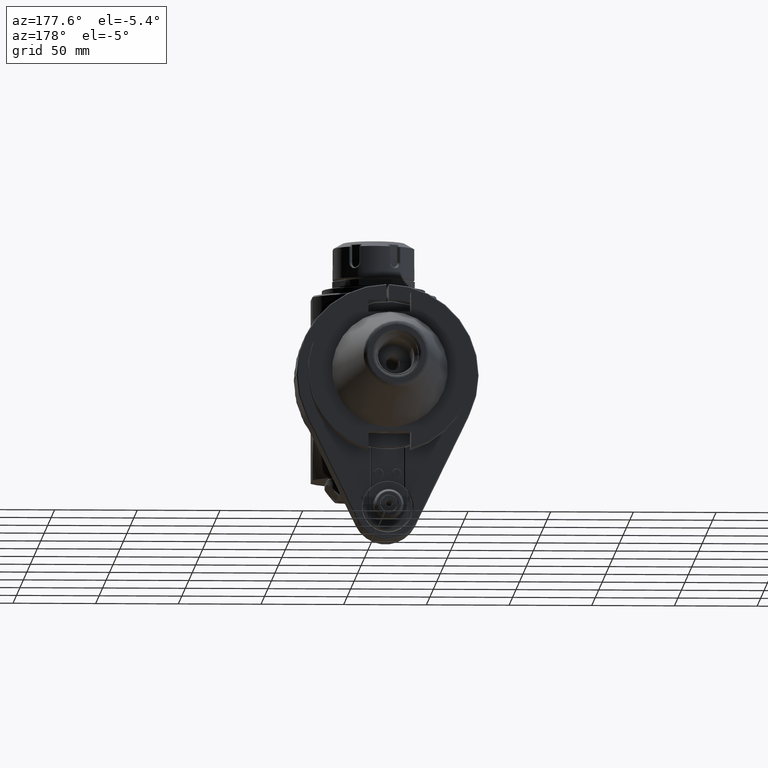
[diagram: clean part render]
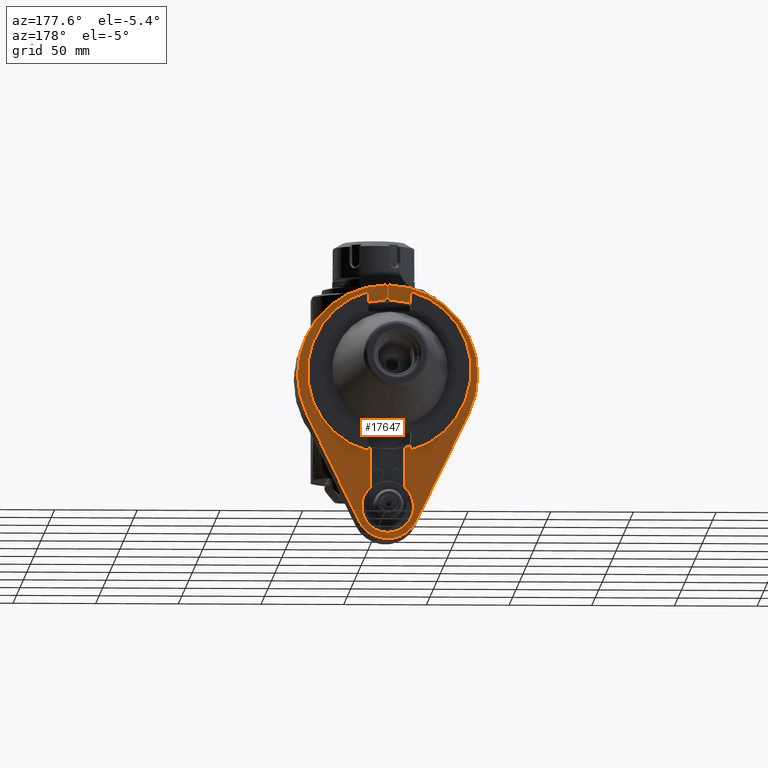
[diagram: same view with one face highlighted and labeled with its STEP entity id]
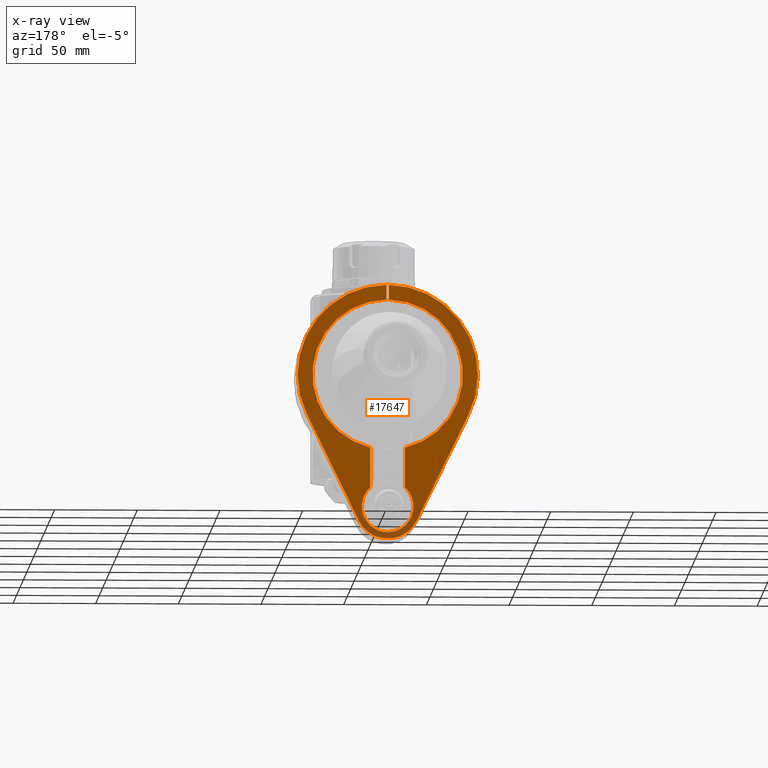
[diagram: x-ray of the same camera — body ghosted, the highlighted face saturated]
A machine part, auxiliary view. The second image highlights one B-rep face of the part: STEP entity #17647.
The next image is the same camera in x-ray: the body ghosted, the highlighted face saturated — about 0% of this face is hidden behind the body in this view.
In plain terms, the highlighted planar face has unit normal (0, 1, 0).
Its self-contained STEP definition (entity closure, byte-faithful):
#1017=CIRCLE('',#18896,45.4999446657);
#1030=CIRCLE('',#18921,54.4997279678);
#1031=CIRCLE('',#18922,19.4996670726964);
#1032=CIRCLE('',#18923,54.49972702429);
#1033=CIRCLE('',#18924,45.49996613716);
#1034=CIRCLE('',#18925,15.64997047922);
#1927=FACE_OUTER_BOUND('',#2975,.T.);
#2975=EDGE_LOOP('',(#12091,#12092,#12093,#12094,#12095,#12096,#12097,#12098,
#12099,#12100,#12101,#12102));
#4279=LINE('',#26628,#5773);
#4288=LINE('',#26683,#5782);
#4293=LINE('',#26710,#5787);
#4296=LINE('',#26717,#5790);
#4297=LINE('',#26723,#5791);
#4298=LINE('',#26726,#5792);
#5773=VECTOR('',#21159,10.);
#5782=VECTOR('',#21206,10.);
#5787=VECTOR('',#21227,10.);
#5790=VECTOR('',#21234,10.);
#5791=VECTOR('',#21241,10.);
#5792=VECTOR('',#21244,10.);
#7410=VERTEX_POINT('',#26607);
#7416=VERTEX_POINT('',#26624);
#7419=VERTEX_POINT('',#26634);
#7433=VERTEX_POINT('',#26678);
#7434=VERTEX_POINT('',#26682);
#7441=VERTEX_POINT('',#26708);
#7442=VERTEX_POINT('',#26709);
#7443=VERTEX_POINT('',#26714);
#7444=VERTEX_POINT('',#26716);
#7445=VERTEX_POINT('',#26720);
#7446=VERTEX_POINT('',#26722);
#7447=VERTEX_POINT('',#26724);
#9229=EDGE_CURVE('',#7410,#7416,#4279,.T.);
#9232=EDGE_CURVE('',#7410,#7419,#1017,.T.);
#9253=EDGE_CURVE('',#7433,#7434,#4288,.T.);
#9264=EDGE_CURVE('',#7441,#7442,#4293,.T.);
#9267=EDGE_CURVE('',#7443,#7416,#1030,.T.);
#9268=EDGE_CURVE('',#7444,#7443,#4296,.T.);
#9269=EDGE_CURVE('',#7442,#7444,#1031,.T.);
#9270=EDGE_CURVE('',#7434,#7441,#1032,.T.);
#9271=EDGE_CURVE('',#7445,#7433,#1033,.T.);
#9272=EDGE_CURVE('',#7446,#7445,#4297,.T.);
#9273=EDGE_CURVE('',#7447,#7446,#1034,.T.);
#9274=EDGE_CURVE('',#7419,#7447,#4298,.T.);
#12091=ORIENTED_EDGE('',*,*,#9232,.F.);
#12092=ORIENTED_EDGE('',*,*,#9229,.T.);
#12093=ORIENTED_EDGE('',*,*,#9267,.F.);
#12094=ORIENTED_EDGE('',*,*,#9268,.F.);
#12095=ORIENTED_EDGE('',*,*,#9269,.F.);
#12096=ORIENTED_EDGE('',*,*,#9264,.F.);
#12097=ORIENTED_EDGE('',*,*,#9270,.F.);
#12098=ORIENTED_EDGE('',*,*,#9253,.F.);
#12099=ORIENTED_EDGE('',*,*,#9271,.F.);
#12100=ORIENTED_EDGE('',*,*,#9272,.F.);
#12101=ORIENTED_EDGE('',*,*,#9273,.F.);
#12102=ORIENTED_EDGE('',*,*,#9274,.F.);
#17084=PLANE('',#18920);
#17647=ADVANCED_FACE('',(#1927),#17084,.T.);
#18896=AXIS2_PLACEMENT_3D('',#26635,#21166,#21167);
#18920=AXIS2_PLACEMENT_3D('',#26713,#21230,#21231);
#18921=AXIS2_PLACEMENT_3D('',#26715,#21232,#21233);
#18922=AXIS2_PLACEMENT_3D('',#26718,#21235,#21236);
#18923=AXIS2_PLACEMENT_3D('',#26719,#21237,#21238);
#18924=AXIS2_PLACEMENT_3D('',#26721,#21239,#21240);
#18925=AXIS2_PLACEMENT_3D('',#26725,#21242,#21243);
#21159=DIRECTION('',(0.,0.,1.));
#21166=DIRECTION('center_axis',(0.,1.,0.));
#21167=DIRECTION('ref_axis',(0.0164835280173405,0.,0.999864137422731));
#21206=DIRECTION('',(0.,0.,1.));
#21227=DIRECTION('',(0.43749999999998,0.,-0.899218410621145));
#21230=DIRECTION('center_axis',(0.,1.,0.));
#21231=DIRECTION('ref_axis',(1.,0.,0.));
#21232=DIRECTION('center_axis',(0.,-1.,0.));
#21233=DIRECTION('ref_axis',(0.899218410123311,0.,-0.437500001023205));
#21234=DIRECTION('',(0.43749999999998,0.,0.899218410621145));
#21235=DIRECTION('center_axis',(0.,-1.,0.));
#21236=DIRECTION('ref_axis',(0.,0.,1.));
#21237=DIRECTION('center_axis',(0.,-1.,0.));
#21238=DIRECTION('ref_axis',(-0.0137615308378099,0.,0.99990530565099));
#21239=DIRECTION('center_axis',(0.,1.,0.));
#21240=DIRECTION('ref_axis',(-0.230769352444596,0.,-0.973008481963185));
#21241=DIRECTION('',(0.,0.,1.));
#21242=DIRECTION('center_axis',(0.,1.,0.));
#21243=DIRECTION('ref_axis',(-0.670930538431927,0.,-0.74152020377023));
#21244=DIRECTION('',(0.,0.,-1.));
#26607=CARTESIAN_POINT('',(0.750000000027361,32.999999999515,45.4937629183949));
#26624=CARTESIAN_POINT('',(0.749999999976473,32.9999999994991,54.4945671484432));
#26628=CARTESIAN_POINT('',(0.75,33.,20.));
#26634=CARTESIAN_POINT('',(10.4999999995187,32.9999999998289,-44.2718303729929));
#26635=CARTESIAN_POINT('Origin',(5.764278043854E-13,33.,2.380318264796E-13));
#26678=CARTESIAN_POINT('',(-0.750000000018149,32.9999999996772,45.4937843931664));
#26682=CARTESIAN_POINT('',(-0.749999999976411,32.9999999994983,54.4945662048469));
#26683=CARTESIAN_POINT('',(-0.75,33.,31.847));
#26708=CARTESIAN_POINT('',(-49.0072803052741,33.0000002228673,-23.8436901632973));
#26709=CARTESIAN_POINT('',(-17.5349551279189,32.999998705085,-88.530471183187));
#26710=CARTESIAN_POINT('',(-41.1392422859193,33.,-40.0156249999998));
#26713=CARTESIAN_POINT('Origin',(0.,33.,0.));
#26714=CARTESIAN_POINT('',(49.007280721413,33.0000002220992,-23.8436903891079));
#26715=CARTESIAN_POINT('Origin',(3.099742784753E-13,33.,8.109069071862E-13));
#26716=CARTESIAN_POINT('',(17.5349710274581,33.0000132101883,-88.5304337147269));
#26717=CARTESIAN_POINT('',(41.1392422859193,33.,-40.0156249999998));
#26718=CARTESIAN_POINT('Origin',(-4.174437572591E-14,33.,-80.));
#26719=CARTESIAN_POINT('Origin',(-8.206768498029E-13,33.,2.84217194304E-14));
#26720=CARTESIAN_POINT('',(-10.500000000249,33.0000000002012,-44.2718524406441));
#26721=CARTESIAN_POINT('Origin',(-3.232969347708E-13,33.,-6.461497003318E-14));
#26722=CARTESIAN_POINT('',(-10.4999999995588,32.9999999999982,-68.3951916851949));
#26723=CARTESIAN_POINT('',(-10.5,33.,-28.12350667748));
#26724=CARTESIAN_POINT('',(10.5000000040409,33.0000000027957,-68.395191686819));
#26725=CARTESIAN_POINT('Origin',(-2.124966769133E-13,33.,-80.));
#26726=CARTESIAN_POINT('',(10.5,33.,-28.12350667748));